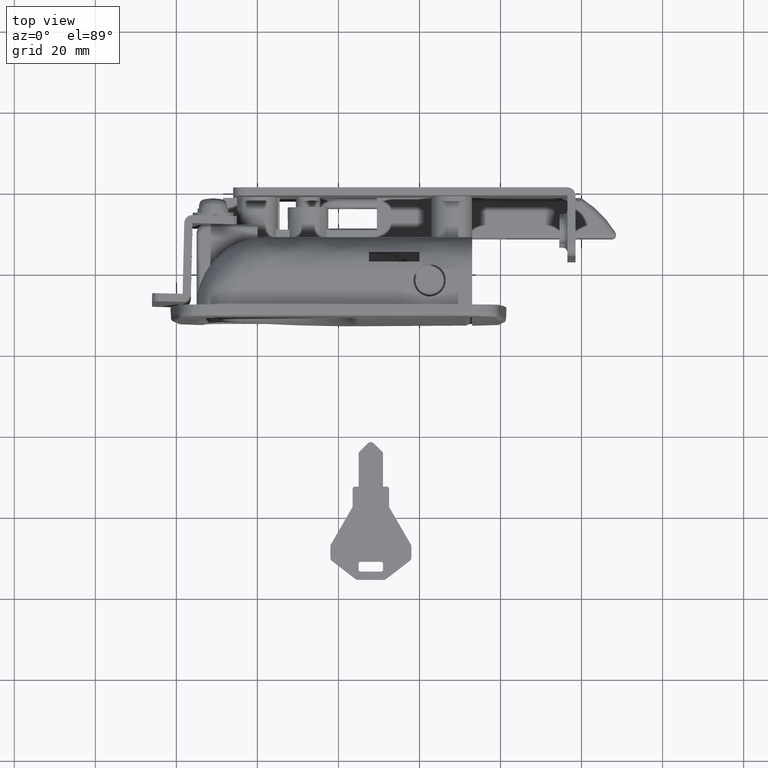
[diagram: clean part render]
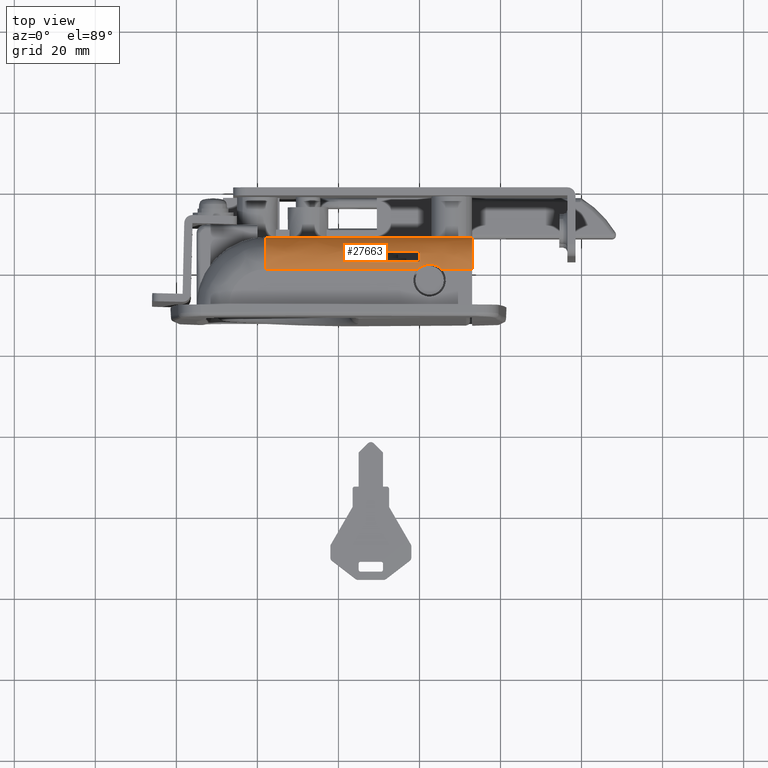
[diagram: same view with one face highlighted and labeled with its STEP entity id]
A machine part, top view. The second image highlights one B-rep face of the part: STEP entity #27663.
In plain terms, the highlighted face is a freeform B-spline surface patch.
Its self-contained STEP definition (entity closure, byte-faithful):
#18762=CARTESIAN_POINT('',(-25.356571371417349,-20.199999999999999,-45.499699999999997));
#18763=VERTEX_POINT('',#18762);
#18777=CARTESIAN_POINT('',(-19.643428628582850,-20.199999999999999,-45.499699999999997));
#18778=VERTEX_POINT('',#18777);
#18779=CARTESIAN_POINT('',(-19.643428628582850,-20.199999999999999,-45.499699999999997));
#18780=CARTESIAN_POINT('',(-19.830814390283908,-20.008828284897710,-45.499700000000011));
#18781=CARTESIAN_POINT('',(-20.033894688085240,-19.839636143751530,-45.492959693221273));
#18782=CARTESIAN_POINT('',(-20.361161733533280,-19.617284426938671,-45.478795075191996));
#18783=CARTESIAN_POINT('',(-20.474054520688870,-19.548448060693872,-45.473377747033112));
#18784=CARTESIAN_POINT('',(-20.649249997539009,-19.453291540440929,-45.464839086181073));
#18785=CARTESIAN_POINT('',(-20.708782065257552,-19.422851888547381,-45.461915951284091));
#18786=CARTESIAN_POINT('',(-20.829061848858309,-19.365111281473482,-45.456068698702573));
#18787=CARTESIAN_POINT('',(-20.889686672564078,-19.337858102543649,-45.453150724249767));
#18788=CARTESIAN_POINT('',(-21.195195703272098,-19.209516867046201,-45.438819368924833));
#18789=CARTESIAN_POINT('',(-21.447166699471740,-19.131966023638029,-45.428263377984919));
#18790=CARTESIAN_POINT('',(-21.771652333686720,-19.066312960206680,-45.418975822898297));
#18791=CARTESIAN_POINT('',(-21.837029794315619,-19.054761364080989,-45.417308821593942));
#18792=CARTESIAN_POINT('',(-21.968764506515392,-19.034873742434499,-45.414406677376959));
#18793=CARTESIAN_POINT('',(-22.035283364330830,-19.026527881308159,-45.413170050116001));
#18794=CARTESIAN_POINT('',(-22.234239290986661,-19.006612945944109,-45.410199828009077));
#18795=CARTESIAN_POINT('',(-22.366566978525231,-19.000046670032241,-45.409195053927519));
#18796=CARTESIAN_POINT('',(-22.762646640796241,-18.999907401741979,-45.409173924631453));
#18797=CARTESIAN_POINT('',(-23.025503469829101,-19.025701023618179,-45.413222260610233));
#18798=CARTESIAN_POINT('',(-23.352537727428398,-19.091339127787400,-45.422518113611389));
#18799=CARTESIAN_POINT('',(-23.417836208687099,-19.106158486365260,-45.424583755986497));
#18800=CARTESIAN_POINT('',(-23.546803912887938,-19.138830927394540,-45.429024813765352));
#18801=CARTESIAN_POINT('',(-23.610660333793881,-19.156718860763540,-45.431405217745478));
#18802=CARTESIAN_POINT('',(-23.800382104108358,-19.214962146502330,-45.438921196941571));
#18803=CARTESIAN_POINT('',(-23.924404365475059,-19.259885594919488,-45.444434998582928));
#18804=CARTESIAN_POINT('',(-24.167605903294511,-19.361803453526392,-45.455833221724482));
#18805=CARTESIAN_POINT('',(-24.286785281035879,-19.418797482866658,-45.461718818846101));
#18806=CARTESIAN_POINT('',(-24.520232995064330,-19.545109009693359,-45.473101961223954));
#18807=CARTESIAN_POINT('',(-24.634911894743681,-19.614758936963121,-45.478615545377977));
#18808=CARTESIAN_POINT('',(-24.965297322090450,-19.838808369230019,-45.492943530283398));
#18809=CARTESIAN_POINT('',(-25.169211495551060,-20.008854693731450,-45.499699999999990));
#18810=CARTESIAN_POINT('',(-25.356571371417349,-20.199999999999999,-45.499699999999997));
#18811=B_SPLINE_CURVE_WITH_KNOTS('',3,(#18779,#18780,#18781,#18782,#18783,#18784,#18785,#18786,#18787,#18788,#18789,#18790,#18791,#18792,#18793,#18794,#18795,#18796,#18797,#18798,#18799,#18800,#18801,#18802,#18803,#18804,#18805,#18806,#18807,#18808,#18809,#18810),.UNSPECIFIED.,.F.,.U.,(4,2,2,2,2,2,2,2,2,2,2,2,2,2,2,4),(0.0,0.124999999999990,0.187499999999986,0.218749999999984,0.249999999999983,0.374999999999979,0.406249999999980,0.437499999999980,0.499999999999981,0.624999999999984,0.656249999999986,0.687499999999988,0.749999999999990,0.812499999999992,0.874999999999995,1.0),.UNSPECIFIED.);
#18812=EDGE_CURVE('',#18778,#18763,#18811,.T.);
#21220=CARTESIAN_POINT('',(18.002176511299400,-12.199999999999999,-37.499699999999997));
#21221=VERTEX_POINT('',#21220);
#21227=CARTESIAN_POINT('',(-33.0,-12.199999999999999,-37.499699999999997));
#21228=VERTEX_POINT('',#21227);
#21229=CARTESIAN_POINT('',(18.002176511299400,-12.199999999999999,-37.499699999999997));
#21230=CARTESIAN_POINT('',(-33.0,-12.199999999999999,-37.499699999999997));
#21231=QUASI_UNIFORM_CURVE('',1,(#21229,#21230),.UNSPECIFIED.,.F.,.U.);
#21232=EDGE_CURVE('',#21221,#21228,#21231,.T.);
#24092=CARTESIAN_POINT('',(-20.0,-18.399999999999999,-45.294570107961903));
#24093=VERTEX_POINT('',#24092);
#24094=CARTESIAN_POINT('',(-20.0,-15.900000000000000,-44.245809990208997));
#24095=VERTEX_POINT('',#24094);
#24096=CARTESIAN_POINT('',(-20.0,-18.399999999999999,-45.294570107961903));
#24097=CARTESIAN_POINT('',(-19.999999999999950,-17.515119976123199,-45.090505090284992));
#24098=CARTESIAN_POINT('',(-20.000000000000082,-16.665556988479469,-44.734310580816782));
#24099=CARTESIAN_POINT('',(-20.0,-15.900000000000000,-44.245809990208997));
#24100=B_SPLINE_CURVE_WITH_KNOTS('',3,(#24096,#24097,#24098,#24099),.UNSPECIFIED.,.F.,.U.,(4,4),(5.423173E-009,2.724225580403553),.UNSPECIFIED.);
#24101=EDGE_CURVE('',#24093,#24095,#24100,.T.);
#24138=CARTESIAN_POINT('',(-7.500000000000090,-15.900000000000000,-44.245809990208997));
#24139=VERTEX_POINT('',#24138);
#24140=CARTESIAN_POINT('',(-20.0,-15.900000000000000,-44.245809990208997));
#24141=CARTESIAN_POINT('',(-7.500000000000090,-15.900000000000000,-44.245809990208997));
#24142=QUASI_UNIFORM_CURVE('',1,(#24140,#24141),.UNSPECIFIED.,.F.,.U.);
#24143=EDGE_CURVE('',#24095,#24139,#24142,.T.);
#24173=CARTESIAN_POINT('',(-7.500000000000090,-18.399999999999999,-45.294570107961903));
#24174=VERTEX_POINT('',#24173);
#24175=CARTESIAN_POINT('',(-7.500000000000090,-15.900000000000000,-44.245809990208997));
#24176=CARTESIAN_POINT('',(-7.500000000000085,-16.665604218564951,-44.734208954460748));
#24177=CARTESIAN_POINT('',(-7.500000000000079,-17.515063302616738,-45.090635009704577));
#24178=CARTESIAN_POINT('',(-7.500000000000090,-18.399999999999999,-45.294570107961903));
#24179=B_SPLINE_CURVE_WITH_KNOTS('',3,(#24175,#24176,#24177,#24178),.UNSPECIFIED.,.F.,.U.,(4,4),(5.423589E-009,2.724225580403547),.UNSPECIFIED.);
#24180=EDGE_CURVE('',#24139,#24174,#24179,.T.);
#24213=CARTESIAN_POINT('',(-7.500000000000090,-18.399999999999999,-45.294570107961903));
#24214=CARTESIAN_POINT('',(-20.0,-18.399999999999999,-45.294570107961903));
#24215=QUASI_UNIFORM_CURVE('',1,(#24213,#24214),.UNSPECIFIED.,.F.,.U.);
#24216=EDGE_CURVE('',#24174,#24093,#24215,.T.);
#24421=CARTESIAN_POINT('',(18.002176511299400,-20.199999999999999,-45.499699999999997));
#24422=VERTEX_POINT('',#24421);
#24438=CARTESIAN_POINT('',(18.002176511299400,-12.199999999999999,-37.499699999999997));
#24439=CARTESIAN_POINT('',(18.002176511299421,-12.199687849712809,-38.285134647514141));
#24440=CARTESIAN_POINT('',(18.002176511299389,-12.389510036996381,-39.561188082238473));
#24441=CARTESIAN_POINT('',(18.002176511299410,-13.095814716107940,-41.296219178706728));
#24442=CARTESIAN_POINT('',(18.002176511299300,-13.992081923404641,-42.637678579049187));
#24443=CARTESIAN_POINT('',(18.002176511299499,-15.074773190300460,-43.693980167913352));
#24444=CARTESIAN_POINT('',(18.002176511299378,-16.102989209319659,-44.399357488071423));
#24445=CARTESIAN_POINT('',(18.002176511299361,-17.245117727702961,-44.974361545096230));
#24446=CARTESIAN_POINT('',(18.002176511299709,-18.596496412418329,-45.393327556566270));
#24447=CARTESIAN_POINT('',(18.002176511299030,-19.676407237050810,-45.499755839734398));
#24448=CARTESIAN_POINT('',(18.002176511299400,-20.199999999999999,-45.499699999999997));
#24449=B_SPLINE_CURVE_WITH_KNOTS('',3,(#24438,#24439,#24440,#24441,#24442,#24443,#24444,#24445,#24446,#24447,#24448),.UNSPECIFIED.,.F.,.U.,(4,1,1,1,1,1,1,1,4),(0.000000099664859,2.356197960930999,3.828844419401019,5.596030246379899,7.166786160430586,8.344890678735478,9.326660884053679,10.995666783557350,12.566449463004361),.UNSPECIFIED.);
#24450=EDGE_CURVE('',#21221,#24422,#24449,.T.);
#27203=CARTESIAN_POINT('',(-33.0,-20.199999999999999,-45.499699999999997));
#27204=VERTEX_POINT('',#27203);
#27205=CARTESIAN_POINT('',(-33.0,-12.199999999999999,-37.499699999999997));
#27206=CARTESIAN_POINT('',(-32.999999999999993,-12.199702795961651,-38.285128303944020));
#27207=CARTESIAN_POINT('',(-33.000000000000057,-12.389460196598939,-39.561209235544773));
#27208=CARTESIAN_POINT('',(-32.999999999999922,-12.996756919391901,-41.052665380979079));
#27209=CARTESIAN_POINT('',(-33.000000000000007,-13.687812123163180,-42.205676946139597));
#27210=CARTESIAN_POINT('',(-33.000000000000057,-14.555776627738879,-43.237298599827348));
#27211=CARTESIAN_POINT('',(-32.999999999999879,-15.602601154144329,-44.085633585369607));
#27212=CARTESIAN_POINT('',(-33.000000000000128,-16.792333853530859,-44.779070055150243));
#27213=CARTESIAN_POINT('',(-32.999999999999787,-18.269299530489459,-45.338462989976982));
#27214=CARTESIAN_POINT('',(-33.000000000000107,-19.512770159201899,-45.499897095869137));
#27215=CARTESIAN_POINT('',(-33.0,-20.199999999999999,-45.499699999999997));
#27216=B_SPLINE_CURVE_WITH_KNOTS('',3,(#27205,#27206,#27207,#27208,#27209,#27210,#27211,#27212,#27213,#27214,#27215),.UNSPECIFIED.,.F.,.U.,(4,1,1,1,1,1,1,1,4),(0.000000099664859,2.356197960930999,3.828844419401019,4.810598232867607,6.381370979801751,7.854007486225850,8.835776153433368,10.504783591042999,12.566449463004361),.UNSPECIFIED.);
#27217=EDGE_CURVE('',#21228,#27204,#27216,.T.);
#27627=CARTESIAN_POINT('',(-34.275054412782488,-12.200304615486630,-37.429887716013013));
#27628=CARTESIAN_POINT('',(19.309107284401449,-12.200304615486630,-37.429887716013013));
#27629=CARTESIAN_POINT('',(-34.275054412782488,-12.125440106563632,-46.008510736094003));
#27630=CARTESIAN_POINT('',(19.309107284401453,-12.125440106563632,-46.008510736094003));
#27631=CARTESIAN_POINT('',(-34.275054412782488,-20.688388316278850,-45.484778387374917));
#27632=CARTESIAN_POINT('',(19.309107284401449,-20.688388316278850,-45.484778387374917));
#27640=(BOUNDED_SURFACE()B_SPLINE_SURFACE(1,2,((#27627,#27629,#27631),(#27628,#27630,#27632)),.UNSPECIFIED.,.F.,.F.,.U.)B_SPLINE_SURFACE_WITH_KNOTS((2,2),(3,3),(0.0,53.584161697183930),(0.0,13.913995998749860),.UNSPECIFIED.)GEOMETRIC_REPRESENTATION_ITEM()RATIONAL_B_SPLINE_SURFACE(((1.0,0.681998360062499,1.0),(1.0,0.681998360062499,1.0)))REPRESENTATION_ITEM('')SURFACE());
#27641=CARTESIAN_POINT('',(-19.643428628582850,-20.199999999999999,-45.499699999999997));
#27642=CARTESIAN_POINT('',(18.002176511299400,-20.199999999999999,-45.499699999999997));
#27643=QUASI_UNIFORM_CURVE('',1,(#27641,#27642),.UNSPECIFIED.,.F.,.U.);
#27644=EDGE_CURVE('',#18778,#24422,#27643,.T.);
#27645=ORIENTED_EDGE('',*,*,#27644,.F.);
#27646=ORIENTED_EDGE('',*,*,#18812,.T.);
#27647=CARTESIAN_POINT('',(-33.0,-20.199999999999999,-45.499699999999997));
#27648=CARTESIAN_POINT('',(-25.356571371417349,-20.199999999999999,-45.499699999999997));
#27649=QUASI_UNIFORM_CURVE('',1,(#27647,#27648),.UNSPECIFIED.,.F.,.U.);
#27650=EDGE_CURVE('',#27204,#18763,#27649,.T.);
#27651=ORIENTED_EDGE('',*,*,#27650,.F.);
#27652=ORIENTED_EDGE('',*,*,#27217,.F.);
#27653=ORIENTED_EDGE('',*,*,#21232,.F.);
#27654=ORIENTED_EDGE('',*,*,#24450,.T.);
#27655=EDGE_LOOP('',(#27645,#27646,#27651,#27652,#27653,#27654));
#27656=FACE_OUTER_BOUND('',#27655,.T.);
#27657=ORIENTED_EDGE('',*,*,#24101,.F.);
#27658=ORIENTED_EDGE('',*,*,#24216,.F.);
#27659=ORIENTED_EDGE('',*,*,#24180,.F.);
#27660=ORIENTED_EDGE('',*,*,#24143,.F.);
#27661=EDGE_LOOP('',(#27657,#27658,#27659,#27660));
#27662=FACE_BOUND('',#27661,.T.);
#27663=ADVANCED_FACE('',(#27656,#27662),#27640,.T.);